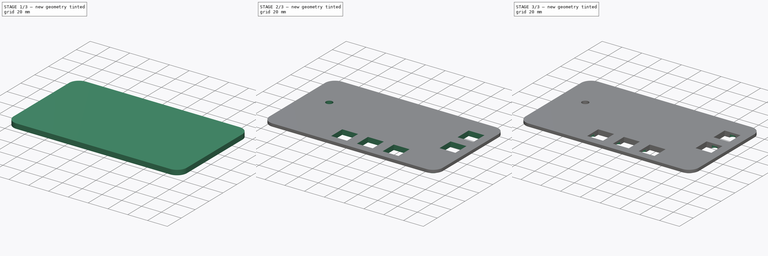
[diagram: build sequence overview — one tinted view per stage of 3, left to right]
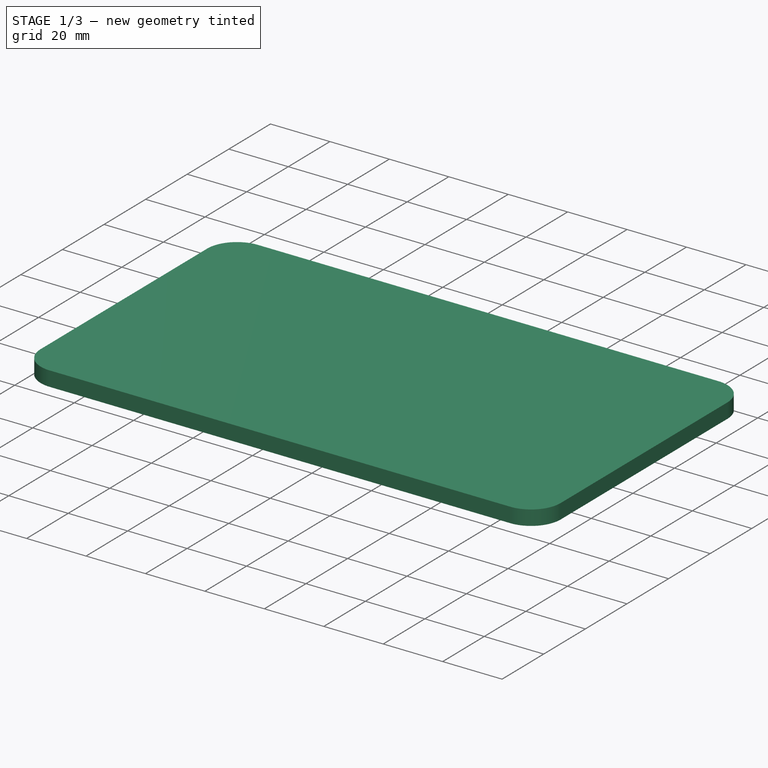
[diagram: stage 1 of 3 — iso view after this stage's code; geometry added in this stage tinted green]
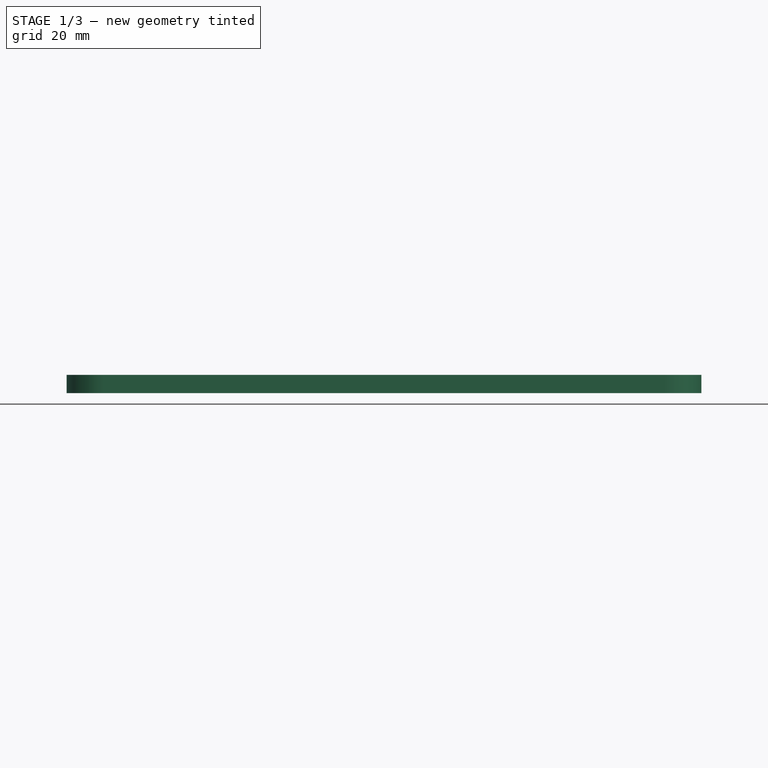
[diagram: stage 1 of 3 — front view after this stage's code; geometry added in this stage tinted green]
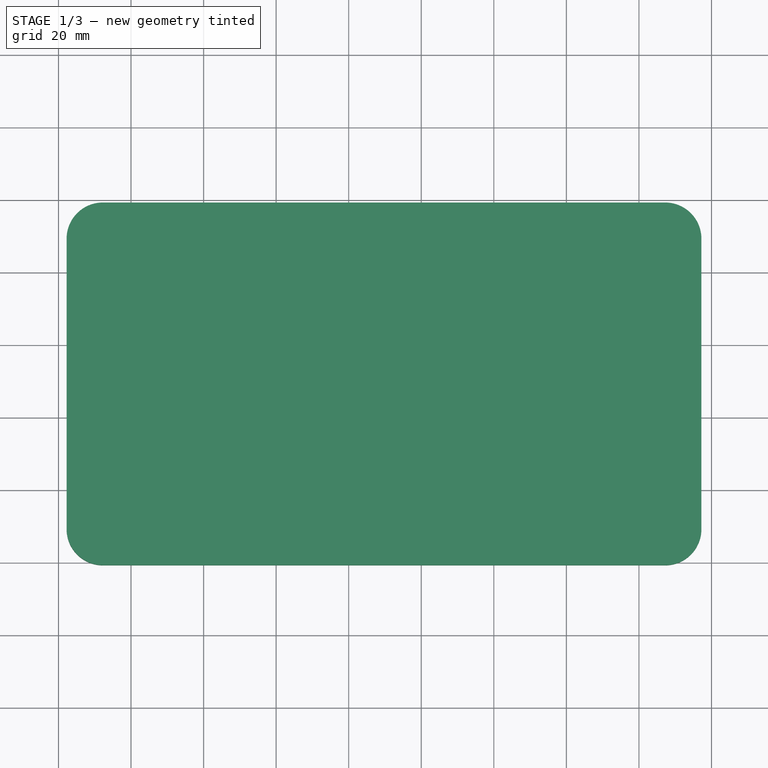
[diagram: stage 1 of 3 — top view after this stage's code; geometry added in this stage tinted green]
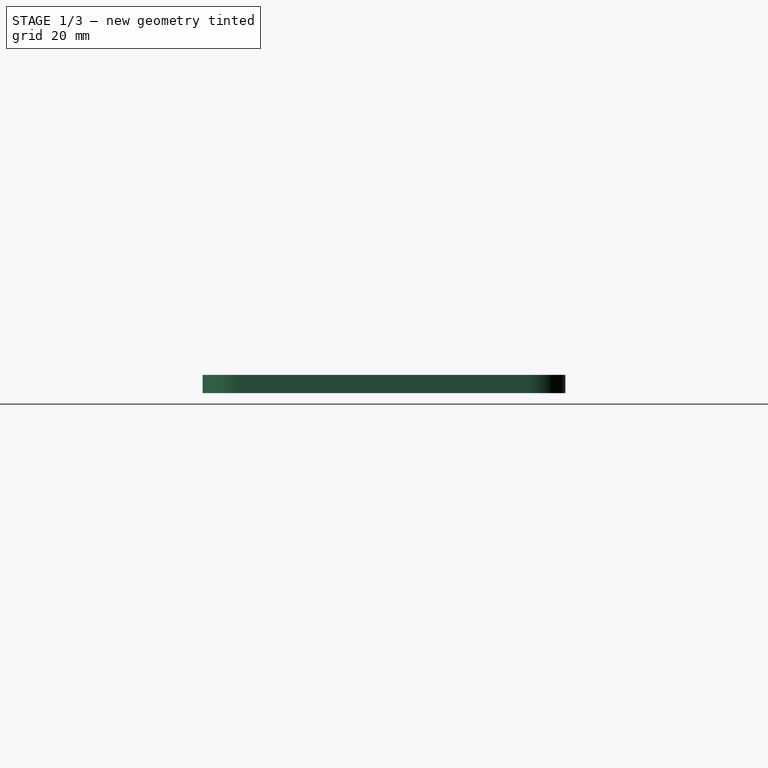
[diagram: stage 1 of 3 — right view after this stage's code; geometry added in this stage tinted green]
FCSTD DOCUMENT  (FreeCAD 0.15R4671 (Git))
Label: player_panel
License: All rights reserved
LicenseURL: http://en.wikipedia.org/wiki/All_rights_reserved
objects: Sketcher::SketchObject×5, PartDesign::Pocket×4, PartDesign::Pad×1, PartDesign::Fillet×1
note: 16 computed .brp shape members not serialized (recipe doc carries the construction recipe); baked Part::Feature solids carry a one-line shape summary decoded from their .brp

FEATURE [Sketcher::SketchObject] Sketch
  sketch-geometry (35):
    g0: LineSegment [constr] StartX=-43 StartY=27 StartZ=0 EndX=43 EndY=27 EndZ=0
    g1: LineSegment [constr] StartX=43 StartY=27 StartZ=0 EndX=43 EndY=-27 EndZ=0
    g2: LineSegment [constr] StartX=43 StartY=-27 StartZ=0 EndX=-43 EndY=-27 EndZ=0
    g3: LineSegment [constr] StartX=-43 StartY=-27 StartZ=0 EndX=-43 EndY=27 EndZ=0
    g4: LineSegment [constr] StartX=-32.5 StartY=-37 StartZ=0 EndX=-17.5 EndY=-37 EndZ=0
    g5: LineSegment [constr] StartX=-17.5 StartY=-37 StartZ=0 EndX=-17.5 EndY=-52 EndZ=0
    g6: LineSegment [constr] StartX=-17.5 StartY=-52 StartZ=0 EndX=-32.5 EndY=-52 EndZ=0
    g7: LineSegment [constr] StartX=-32.5 StartY=-52 StartZ=0 EndX=-32.5 EndY=-37 EndZ=0
    g8: LineSegment [constr] StartX=-7.5 StartY=-37 StartZ=0 EndX=7.5 EndY=-37 EndZ=0
    g9: LineSegment [constr] StartX=7.5 StartY=-37 StartZ=0 EndX=7.5 EndY=-52 EndZ=0
    g10: LineSegment [constr] StartX=7.5 StartY=-52 StartZ=0 EndX=-7.5 EndY=-52 EndZ=0
    g11: LineSegment [constr] StartX=-7.5 StartY=-52 StartZ=0 EndX=-7.5 EndY=-37 EndZ=0
    g12: LineSegment [constr] StartX=17.5 StartY=-37 StartZ=0 EndX=32.5 EndY=-37 EndZ=0
    g13: LineSegment [constr] StartX=32.5 StartY=-37 StartZ=0 EndX=32.5 EndY=-52 EndZ=0
    g14: LineSegment [constr] StartX=32.5 StartY=-52 StartZ=0 EndX=17.5 EndY=-52 EndZ=0
    g15: LineSegment [constr] StartX=17.5 StartY=-52 StartZ=0 EndX=17.5 EndY=-37 EndZ=0
    g16: LineSegment [constr] StartX=7.5 StartY=-37 StartZ=0 EndX=17.5 EndY=-37 EndZ=0
    g17: LineSegment [constr] StartX=-17.5 StartY=-37 StartZ=0 EndX=-7.5 EndY=-37 EndZ=0
    g18: LineSegment [constr] StartX=0 StartY=-27 StartZ=0 EndX=0 EndY=-37 EndZ=0
    g19: Circle [constr] CenterX=-73 CenterY=0 CenterZ=0 NormalX=0 NormalY=0 NormalZ=1 Radius=20
    g20: LineSegment [constr] StartX=-43 StartY=0 StartZ=0 EndX=-53 EndY=0 EndZ=0
    g21: LineSegment [constr] StartX=53 StartY=20 StartZ=0 EndX=68 EndY=20 EndZ=0
    g22: LineSegment [constr] StartX=68 StartY=20 StartZ=0 EndX=68 EndY=5 EndZ=0
    g23: LineSegment [constr] StartX=68 StartY=5 StartZ=0 EndX=53 EndY=5 EndZ=0
    g24: LineSegment [constr] StartX=53 StartY=5 StartZ=0 EndX=53 EndY=20 EndZ=0
    g25: LineSegment [constr] StartX=53 StartY=-5 StartZ=0 EndX=68 EndY=-5 EndZ=0
    g26: LineSegment [constr] StartX=68 StartY=-5 StartZ=0 EndX=68 EndY=-20 EndZ=0
    g27: LineSegment [constr] StartX=68 StartY=-20 StartZ=0 EndX=53 EndY=-20 EndZ=0
    g28: LineSegment [constr] StartX=53 StartY=-20 StartZ=0 EndX=53 EndY=-5 EndZ=0
    g29: LineSegment [constr] StartX=53 StartY=5 StartZ=0 EndX=53 EndY=-5 EndZ=0
    g30: LineSegment [constr] StartX=53 StartY=5 StartZ=0 EndX=43 EndY=5 EndZ=0
    g31: LineSegment StartX=-97.7701 StartY=39.304 StartZ=0 EndX=77.2299 EndY=39.304 EndZ=0
    g32: LineSegment StartX=77.2299 StartY=39.304 StartZ=0 EndX=77.2299 EndY=-60.696 EndZ=0
    g33: LineSegment StartX=77.2299 StartY=-60.696 StartZ=0 EndX=-97.7701 EndY=-60.696 EndZ=0
    g34: LineSegment StartX=-97.7701 StartY=-60.696 StartZ=0 EndX=-97.7701 EndY=39.304 EndZ=0
  constraints (102):
    c: Coincident(g0,g1)
    c: Coincident(g1,g2)
    c: Coincident(g2,g3)
    c: Coincident(g3,g0)
    c: Horizontal(g0)
    c: Horizontal(g2)
    c: Vertical(g1)
    c: Vertical(g3)
    c: Symmetric(g0,g1,g-1)
    c: Symmetric(g0,g0,g-2)
    c: Distance(g0) = 86
    c: Distance(g1) = 54
    c: Coincident(g4,g5)
    c: Coincident(g5,g6)
    c: Coincident(g6,g7)
    c: Coincident(g7,g4)
    c: Horizontal(g4)
    c: Horizontal(g6)
    c: Vertical(g5)
    c: Vertical(g7)
    c: Equal(g4,g5)
    c: Distance(g4) = 15
    c: Coincident(g8,g9)
    c: Coincident(g9,g10)
    c: Coincident(g10,g11)
    c: Coincident(g11,g8)
    c: Horizontal(g10)
    c: Vertical(g9)
    c: Vertical(g11)
    c: Equal(g8,g9)
    c: Equal(g8,g4)
    c: Coincident(g12,g13)
    c: Coincident(g13,g14)
    c: Coincident(g14,g15)
    c: Coincident(g15,g12)
    c: Horizontal(g12)
    c: Horizontal(g14)
    c: Vertical(g13)
    c: Vertical(g15)
    c: Equal(g12,g13)
    c: Equal(g12,g4)
    c: Symmetric(g8,g8,g-2)
    c: Symmetric(g12,g4,g-2)
    c: Coincident(g16,g8)
    c: Coincident(g16,g12)
    c: Coincident(g17,g4)
    c: Coincident(g17,g8)
    c: Horizontal(g17)
    c: Equal(g17,g16)
    c: Distance(g17) = 10
    c: PointOnObject(g18,g2)
    c: Vertical(g18)
    c: PointOnObject(g18,g8)
    c: PointOnObject(g18,g-2)
    c: Distance(g18) = 10
    c: PointOnObject(g19,g-1)
    c: Radius(g19) = 20
    c: Horizontal(g20)
    c: PointOnObject(g20,g19)
    c: PointOnObject(g20,g3)
    c: PointOnObject(g20,g-1)
    c: Distance(g20) = 10
    c: Coincident(g21,g22)
    c: Coincident(g22,g23)
    c: Coincident(g23,g24)
    c: Coincident(g24,g21)
    c: Horizontal(g21)
    c: Horizontal(g23)
    c: Vertical(g22)
    c: Vertical(g24)
    c: Coincident(g25,g26)
    c: Coincident(g26,g27)
    c: Coincident(g27,g28)
    c: Coincident(g28,g25)
    c: Horizontal(g25)
    c: Horizontal(g27)
    c: Vertical(g26)
    c: Vertical(g28)
    c: Equal(g21,g25)
    c: Equal(g25,g22)
    c: Equal(g22,g26)
    c: Equal(g26,g4)
    c: Symmetric(g22,g25,g-1)
    c: Coincident(g29,g23)
    c: Coincident(g29,g25)
    c: Distance(g29) = 10
    c: Coincident(g30,g23)
    c: PointOnObject(g30,g1)
    c: Horizontal(g30)
    c: Distance(g30) = 10
    c: Coincident(g31,g32)
    c: Coincident(g32,g33)
    c: Coincident(g33,g34)
    c: Coincident(g34,g31)
    c: Horizontal(g31)
    c: Horizontal(g33)
    c: Vertical(g32)
    c: Vertical(g34)
    c: Distance(g32) = 100
    c: Distance(g31) = 175
    c: DistanceX(g31) = 77.2299
    c: DistanceY(g31) = 39.304
FEATURE [PartDesign::Pad] Pad
  Length = 5
  Length2 = 100
  Sketch = -> Sketch
  Type = 0
FEATURE [PartDesign::Fillet] Fillet
  Base = -> Pad [Edge8,Edge1,Edge5,Edge2]
  Radius = 10
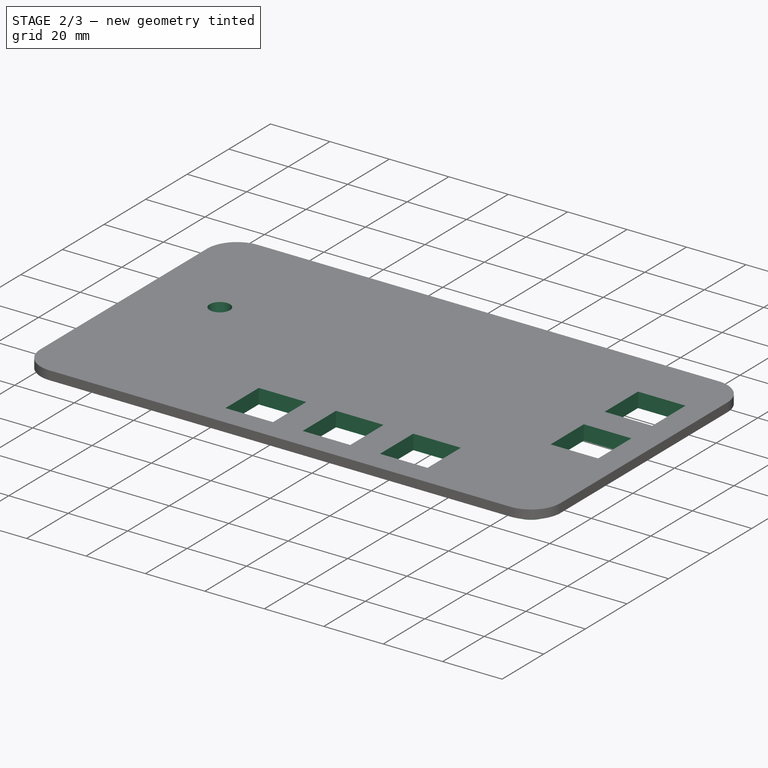
[diagram: stage 2 of 3 — iso view after this stage's code; geometry added in this stage tinted green]
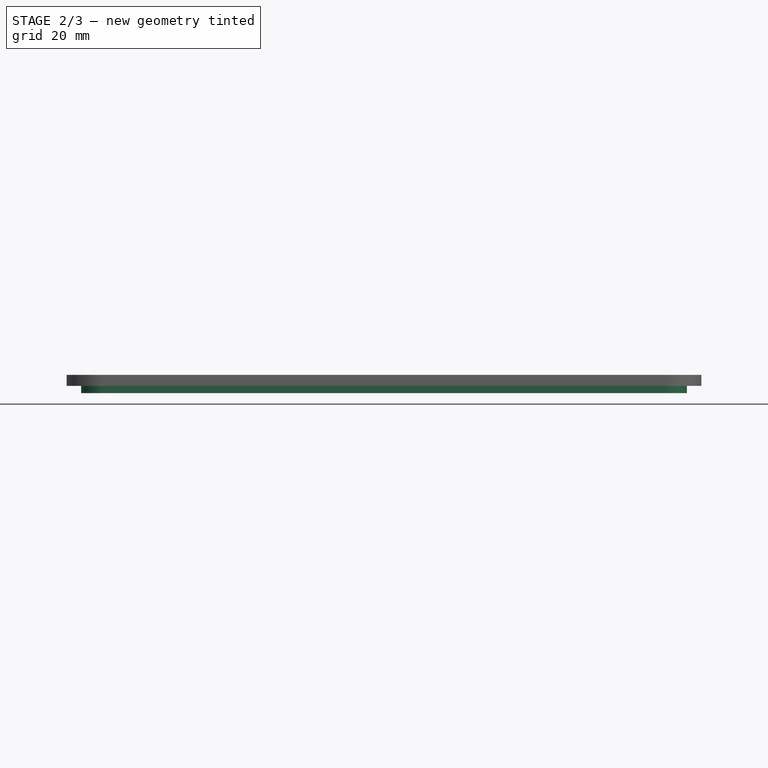
[diagram: stage 2 of 3 — front view after this stage's code; geometry added in this stage tinted green]
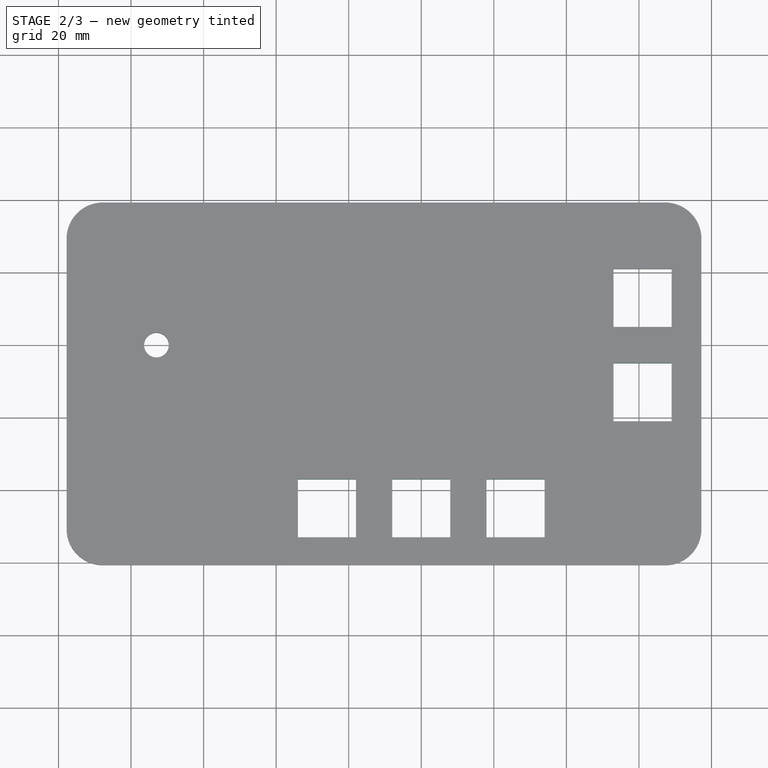
[diagram: stage 2 of 3 — top view after this stage's code; geometry added in this stage tinted green]
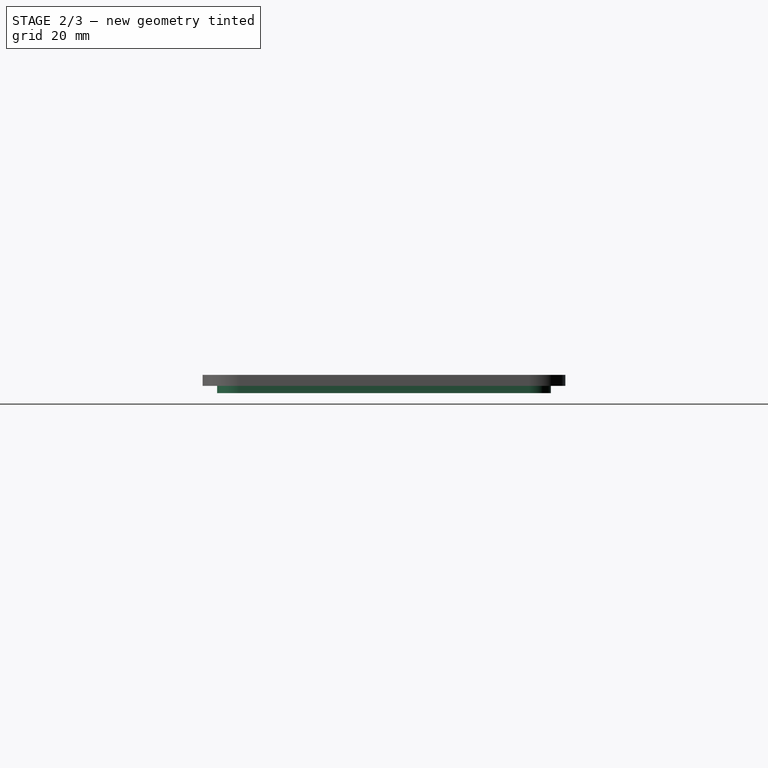
[diagram: stage 2 of 3 — right view after this stage's code; geometry added in this stage tinted green]
FEATURE [Sketcher::SketchObject] Sketch001
  Placement = pos=(0,0,5) rot=(0,0,1;0rad)
  Support = -> Fillet [Face5]
  sketch-geometry (32):
    g0: LineSegment [constr] StartX=-43 StartY=27 StartZ=0 EndX=43 EndY=27 EndZ=0
    g1: LineSegment [constr] StartX=43 StartY=27 StartZ=0 EndX=43 EndY=-27 EndZ=0
    g2: LineSegment [constr] StartX=43 StartY=-27 StartZ=0 EndX=-43 EndY=-27 EndZ=0
    g3: LineSegment [constr] StartX=-43 StartY=-27 StartZ=0 EndX=-43 EndY=27 EndZ=0
    g4: LineSegment StartX=-34 StartY=-37 StartZ=0 EndX=-18 EndY=-37 EndZ=0
    g5: LineSegment StartX=-18 StartY=-37 StartZ=0 EndX=-18 EndY=-53 EndZ=0
    g6: LineSegment StartX=-18 StartY=-53 StartZ=0 EndX=-34 EndY=-53 EndZ=0
    g7: LineSegment StartX=-34 StartY=-53 StartZ=0 EndX=-34 EndY=-37 EndZ=0
    g8: LineSegment StartX=-8 StartY=-37 StartZ=0 EndX=8 EndY=-37 EndZ=0
    g9: LineSegment StartX=8 StartY=-37 StartZ=0 EndX=8 EndY=-53 EndZ=0
    g10: LineSegment StartX=8 StartY=-53 StartZ=0 EndX=-8 EndY=-53 EndZ=0
    g11: LineSegment StartX=-8 StartY=-53 StartZ=0 EndX=-8 EndY=-37 EndZ=0
    g12: LineSegment StartX=18 StartY=-37 StartZ=0 EndX=34 EndY=-37 EndZ=0
    g13: LineSegment StartX=34 StartY=-37 StartZ=0 EndX=34 EndY=-53 EndZ=0
    g14: LineSegment StartX=34 StartY=-53 StartZ=0 EndX=18 EndY=-53 EndZ=0
    g15: LineSegment StartX=18 StartY=-53 StartZ=0 EndX=18 EndY=-37 EndZ=0
    g16: LineSegment [constr] StartX=8 StartY=-37 StartZ=0 EndX=18 EndY=-37 EndZ=0
    g17: LineSegment [constr] StartX=-18 StartY=-37 StartZ=0 EndX=-8 EndY=-37 EndZ=0
    g18: LineSegment [constr] StartX=0 StartY=-27 StartZ=0 EndX=0 EndY=-37 EndZ=0
    g19: Circle [constr] CenterX=-73 CenterY=0 CenterZ=0 NormalX=0 NormalY=0 NormalZ=1 Radius=20
    g20: LineSegment [constr] StartX=-43 StartY=0 StartZ=0 EndX=-53 EndY=0 EndZ=0
    g21: LineSegment StartX=53 StartY=21 StartZ=0 EndX=69 EndY=21 EndZ=0
    g22: LineSegment StartX=69 StartY=21 StartZ=0 EndX=69 EndY=5 EndZ=0
    g23: LineSegment StartX=69 StartY=5 StartZ=0 EndX=53 EndY=5 EndZ=0
    g24: LineSegment StartX=53 StartY=5 StartZ=0 EndX=53 EndY=21 EndZ=0
    g25: LineSegment StartX=53 StartY=-5 StartZ=0 EndX=69 EndY=-5 EndZ=0
    g26: LineSegment StartX=69 StartY=-5 StartZ=0 EndX=69 EndY=-21 EndZ=0
    g27: LineSegment StartX=69 StartY=-21 StartZ=0 EndX=53 EndY=-21 EndZ=0
    g28: LineSegment StartX=53 StartY=-21 StartZ=0 EndX=53 EndY=-5 EndZ=0
    g29: LineSegment [constr] StartX=53 StartY=5 StartZ=0 EndX=53 EndY=-5 EndZ=0
    g30: LineSegment [constr] StartX=53 StartY=5 StartZ=0 EndX=43 EndY=5 EndZ=0
    g31: Circle CenterX=-73 CenterY=0 CenterZ=0 NormalX=0 NormalY=0 NormalZ=1 Radius=3.4
  constraints (92):
    c: Coincident(g0,g1)
    c: Coincident(g1,g2)
    c: Coincident(g2,g3)
    c: Coincident(g3,g0)
    c: Horizontal(g0)
    c: Horizontal(g2)
    c: Vertical(g1)
    c: Vertical(g3)
    c: Symmetric(g0,g1,g-1)
    c: Symmetric(g0,g0,g-2)
    c: Distance(g0) = 86
    c: Distance(g1) = 54
    c: Coincident(g4,g5)
    c: Coincident(g5,g6)
    c: Coincident(g6,g7)
    c: Coincident(g7,g4)
    c: Horizontal(g4)
    c: Horizontal(g6)
    c: Vertical(g5)
    c: Vertical(g7)
    c: Equal(g4,g5)
    c: Distance(g4) = 16
    c: Coincident(g8,g9)
    c: Coincident(g9,g10)
    c: Coincident(g10,g11)
    c: Coincident(g11,g8)
    c: Horizontal(g10)
    c: Vertical(g9)
    c: Vertical(g11)
    c: Equal(g8,g9)
    c: Equal(g8,g4)
    c: Coincident(g12,g13)
    c: Coincident(g13,g14)
    c: Coincident(g14,g15)
    c: Coincident(g15,g12)
    c: Horizontal(g12)
    c: Horizontal(g14)
    c: Vertical(g13)
    c: Vertical(g15)
    c: Equal(g12,g13)
    c: Equal(g12,g4)
    c: Symmetric(g8,g8,g-2)
    c: Symmetric(g12,g4,g-2)
    c: Coincident(g16,g8)
    c: Coincident(g16,g12)
    c: Coincident(g17,g4)
    c: Coincident(g17,g8)
    c: Horizontal(g17)
    c: Equal(g17,g16)
    c: Distance(g17) = 10
    c: PointOnObject(g18,g2)
    c: Vertical(g18)
    c: PointOnObject(g18,g8)
    c: PointOnObject(g18,g-2)
    c: Distance(g18) = 10
    c: PointOnObject(g19,g-1)
    c: Radius(g19) = 20
    c: Horizontal(g20)
    c: PointOnObject(g20,g19)
    c: PointOnObject(g20,g3)
    c: PointOnObject(g20,g-1)
    c: Distance(g20) = 10
    c: Coincident(g21,g22)
    c: Coincident(g22,g23)
    c: Coincident(g23,g24)
    c: Coincident(g24,g21)
    c: Horizontal(g21)
    c: Horizontal(g23)
    c: Vertical(g22)
    c: Vertical(g24)
    c: Coincident(g25,g26)
    c: Coincident(g26,g27)
    c: Coincident(g27,g28)
    c: Coincident(g28,g25)
    c: Horizontal(g25)
    c: Horizontal(g27)
    c: Vertical(g26)
    c: Vertical(g28)
    c: Equal(g21,g25)
    c: Equal(g25,g22)
    c: Equal(g22,g26)
    c: Equal(g26,g4)
    c: Symmetric(g22,g25,g-1)
    c: Coincident(g29,g23)
    c: Coincident(g29,g25)
    c: Distance(g29) = 10
    c: Coincident(g30,g23)
    c: PointOnObject(g30,g1)
    c: Horizontal(g30)
    c: Distance(g30) = 10
    c: Coincident(g31,g19)
    c: Radius(g31) = 3.4
FEATURE [PartDesign::Pocket] Pocket
  Length = 5
  Sketch = -> Sketch001
  Type = 1
FEATURE [Sketcher::SketchObject] Sketch002
  ExternalGeometry = -> [Pocket]
  Placement = pos=(0,0,0) rot=(1,0,0;3.14159rad)
  Support = -> Pocket [Face2]
  sketch-geometry (13):
    g0: LineSegment StartX=-87.7701 StartY=56.696 StartZ=0 EndX=67.2299 EndY=56.696 EndZ=0
    g1: ArcOfCircle CenterX=-87.7701 CenterY=50.696 CenterZ=0 NormalX=0 NormalY=0 NormalZ=1 Radius=6 StartAngle=1.5708 EndAngle=3.14159
    g2: ArcOfCircle CenterX=67.2299 CenterY=50.696 CenterZ=0 NormalX=0 NormalY=0 NormalZ=1 Radius=6 StartAngle=4.66251e-06 EndAngle=1.5708
    g3: LineSegment StartX=73.2299 StartY=50.696 StartZ=0 EndX=73.2299 EndY=-29.304 EndZ=0
    g4: LineSegment StartX=-87.7701 StartY=-35.304 StartZ=0 EndX=67.2299 EndY=-35.304 EndZ=0
    g5: ArcOfCircle CenterX=67.2299 CenterY=-29.304 CenterZ=0 NormalX=0 NormalY=0 NormalZ=1 Radius=6 StartAngle=4.71239 EndAngle=6.28319
    g6: LineSegment StartX=-93.7701 StartY=50.696 StartZ=0 EndX=-93.7701 EndY=-29.304 EndZ=0
    g7: ArcOfCircle CenterX=-87.7701 CenterY=-29.304 CenterZ=0 NormalX=0 NormalY=0 NormalZ=1 Radius=6 StartAngle=3.14159 EndAngle=4.71239
    g8: LineSegment [constr] StartX=0 StartY=60.696 StartZ=0 EndX=0 EndY=56.696 EndZ=0
    g9: LineSegment StartX=-106.658 StartY=70.2085 StartZ=0 EndX=83.0393 EndY=70.2085 EndZ=0
    g10: LineSegment StartX=83.0393 StartY=70.2085 StartZ=0 EndX=83.0393 EndY=-47.6221 EndZ=0
    g11: LineSegment StartX=83.0393 StartY=-47.6221 StartZ=0 EndX=-106.658 EndY=-47.6221 EndZ=0
    g12: LineSegment StartX=-106.658 StartY=-47.6221 StartZ=0 EndX=-106.658 EndY=70.2085 EndZ=0
  constraints (40):
    c: Horizontal(g0)
    c: Coincident(g1,g-4)
    c: Coincident(g1,g0)
    c: Coincident(g2,g-6)
    c: Coincident(g2,g0)
    c: Coincident(g3,g2)
    c: Vertical(g3)
    c: Horizontal(g4)
    c: Coincident(g5,g-8)
    c: Coincident(g5,g3)
    c: Coincident(g5,g4)
    c: Coincident(g6,g1)
    c: Vertical(g6)
    c: Coincident(g7,g-10)
    c: Coincident(g7,g4)
    c: Coincident(g7,g6)
    c: Tangent(g1,g0)
    c: Tangent(g1,g6)
    c: Tangent(g2,g0)
    c: Tangent(g2,g3)
    c: Tangent(g5,g3)
    c: Tangent(g5,g4)
    c: Tangent(g7,g4)
    c: PointOnObject(g8,g-3)
    c: PointOnObject(g8,g0)
    c: Vertical(g8)
    c: PointOnObject(g8,g-2)
    c: Coincident(g9,g10)
    c: Coincident(g10,g11)
    c: Coincident(g11,g12)
    c: Coincident(g12,g9)
    c: Horizontal(g9)
    c: Horizontal(g11)
    c: Vertical(g10)
    c: Vertical(g12)
    c: Distance(g8) = 4
    c: DistanceX(g9) = 83.0393
    c: DistanceY(g9) = 70.2085
    c: DistanceX(g11) = -106.658
    c: DistanceY(g11) = -47.6221
FEATURE [PartDesign::Pocket] Pocket001
  Length = 2
  Sketch = -> Sketch002
  Type = 0
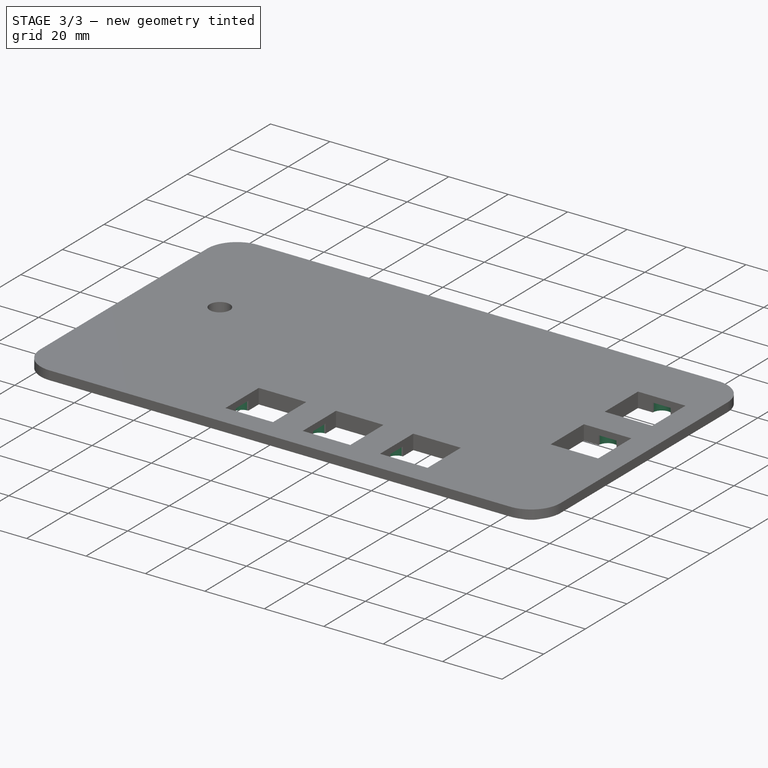
[diagram: stage 3 of 3 — iso view after this stage's code; geometry added in this stage tinted green]
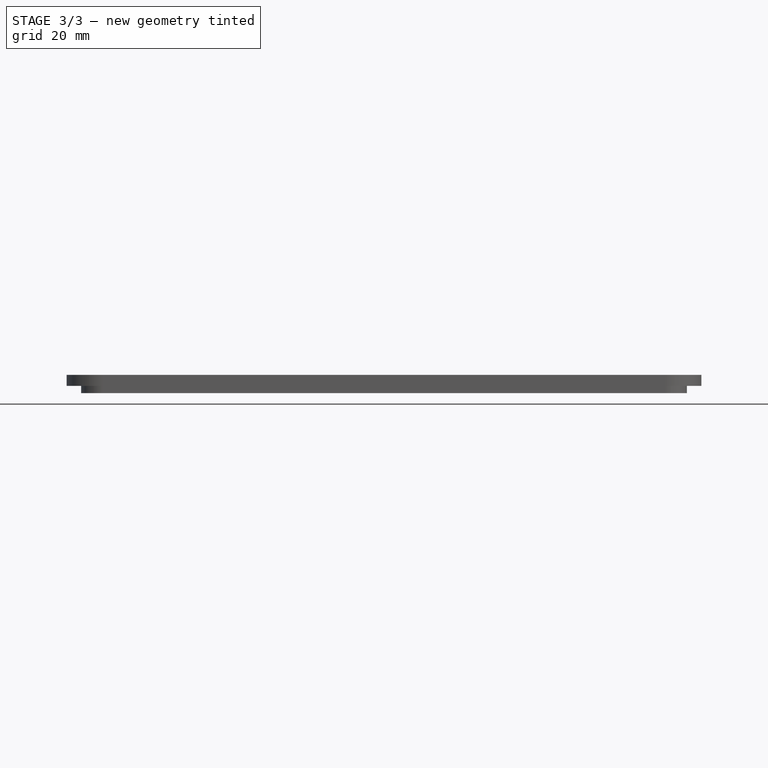
[diagram: stage 3 of 3 — front view after this stage's code; geometry added in this stage tinted green]
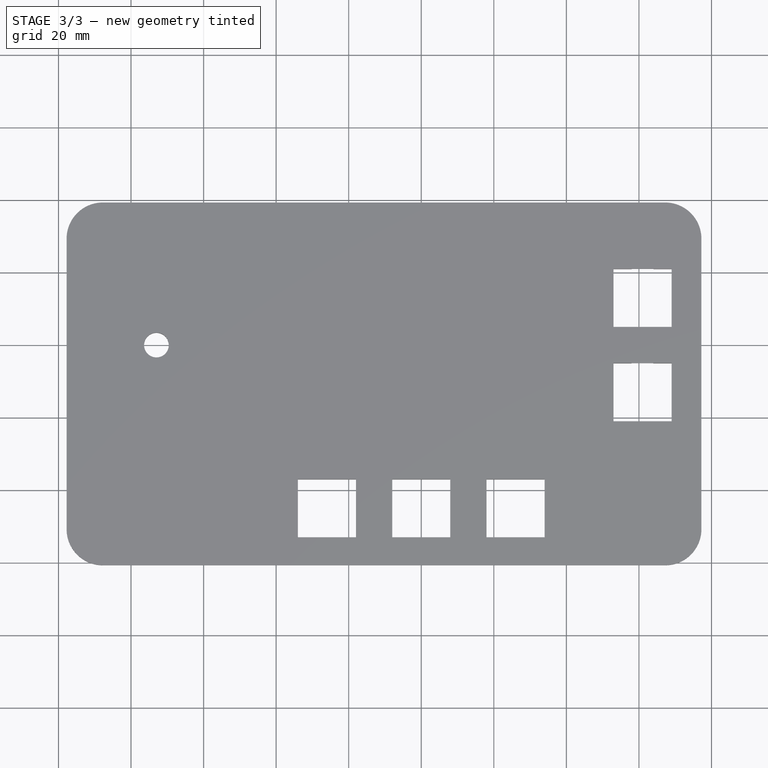
[diagram: stage 3 of 3 — top view after this stage's code; geometry added in this stage tinted green]
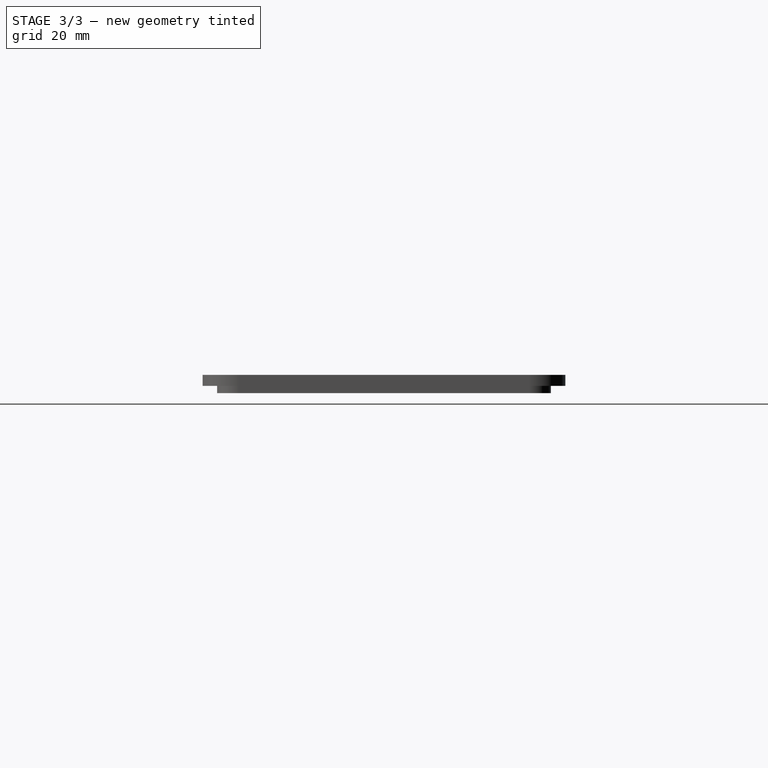
[diagram: stage 3 of 3 — right view after this stage's code; geometry added in this stage tinted green]
FEATURE [Sketcher::SketchObject] Sketch003
  Placement = pos=(0,0,0) rot=(1,0,0;3.14159rad)
  Support = -> Pocket001 [Face40]
  sketch-geometry (8):
    g0: LineSegment [constr] StartX=-43 StartY=27 StartZ=0 EndX=43 EndY=27 EndZ=0
    g1: LineSegment [constr] StartX=43 StartY=27 StartZ=0 EndX=43 EndY=-27 EndZ=0
    g2: LineSegment [constr] StartX=43 StartY=-27 StartZ=0 EndX=-43 EndY=-27 EndZ=0
    g3: LineSegment [constr] StartX=-43 StartY=-27 StartZ=0 EndX=-43 EndY=27 EndZ=0
    g4: LineSegment StartX=-21.72 StartY=20.575 StartZ=0 EndX=21.72 EndY=20.575 EndZ=0
    g5: LineSegment StartX=21.72 StartY=20.575 StartZ=0 EndX=21.72 EndY=-20.575 EndZ=0
    g6: LineSegment StartX=21.72 StartY=-20.575 StartZ=0 EndX=-21.72 EndY=-20.575 EndZ=0
    g7: LineSegment StartX=-21.72 StartY=-20.575 StartZ=0 EndX=-21.72 EndY=20.575 EndZ=0
  constraints (24):
    c: Coincident(g0,g1)
    c: Coincident(g1,g2)
    c: Coincident(g2,g3)
    c: Coincident(g3,g0)
    c: Horizontal(g0)
    c: Horizontal(g2)
    c: Vertical(g1)
    c: Vertical(g3)
    c: Symmetric(g0,g1,g-1)
    c: Symmetric(g0,g0,g-2)
    c: Distance(g0) = 86
    c: Distance(g1) = 54
    c: Coincident(g4,g5)
    c: Coincident(g5,g6)
    c: Coincident(g6,g7)
    c: Coincident(g7,g4)
    c: Horizontal(g4)
    c: Horizontal(g6)
    c: Vertical(g5)
    c: Vertical(g7)
    c: Symmetric(g4,g4,g-2)
    c: Symmetric(g4,g5,g-1)
    c: Distance(g4) = 43.44
    c: Distance(g5) = 41.15
FEATURE [PartDesign::Pocket] Pocket002
  Length = 4.5
  Sketch = -> Sketch003
  Type = 0
FEATURE [Sketcher::SketchObject] Sketch004
  ExternalGeometry = -> [Pocket002]
  Placement = pos=(0,0,0) rot=(1,0,0;3.14159rad)
  Support = -> Pocket002 [Face40]
  sketch-geometry (10):
    g0: Circle CenterX=-34 CenterY=45 CenterZ=0 NormalX=0 NormalY=0 NormalZ=1 Radius=3
    g1: Circle CenterX=-18 CenterY=45 CenterZ=0 NormalX=0 NormalY=0 NormalZ=1 Radius=3
    g2: Circle CenterX=-8 CenterY=45 CenterZ=0 NormalX=0 NormalY=0 NormalZ=1 Radius=3
    g3: Circle CenterX=8 CenterY=45 CenterZ=0 NormalX=0 NormalY=0 NormalZ=1 Radius=3
    g4: Circle CenterX=18 CenterY=45 CenterZ=0 NormalX=0 NormalY=0 NormalZ=1 Radius=3
    g5: Circle CenterX=34 CenterY=45 CenterZ=0 NormalX=0 NormalY=0 NormalZ=1 Radius=3
    g6: Circle CenterX=61 CenterY=21 CenterZ=0 NormalX=0 NormalY=0 NormalZ=1 Radius=3
    g7: Circle CenterX=61 CenterY=5 CenterZ=0 NormalX=0 NormalY=0 NormalZ=1 Radius=3
    g8: Circle CenterX=61 CenterY=-5 CenterZ=0 NormalX=0 NormalY=0 NormalZ=1 Radius=3
    g9: Circle CenterX=61 CenterY=-21 CenterZ=0 NormalX=0 NormalY=0 NormalZ=1 Radius=3
  constraints (30):
    c: PointOnObject(g0,g-3)
    c: Symmetric(g-3,g-3,g0)
    c: Radius(g0) = 3
    c: PointOnObject(g1,g-4)
    c: PointOnObject(g2,g-5)
    c: PointOnObject(g3,g-6)
    c: PointOnObject(g4,g-7)
    c: PointOnObject(g5,g-8)
    c: PointOnObject(g6,g-9)
    c: PointOnObject(g7,g-10)
    c: PointOnObject(g8,g-11)
    c: PointOnObject(g9,g-12)
    c: Equal(g1,g0)
    c: Equal(g2,g3)
    c: Equal(g3,g4)
    c: Equal(g4,g5)
    c: Equal(g5,g0)
    c: Equal(g9,g8)
    c: Equal(g8,g7)
    c: Equal(g7,g6)
    c: Equal(g6,g0)
    c: Symmetric(g-4,g-4,g1)
    c: Symmetric(g-5,g-5,g2)
    c: Symmetric(g-6,g-6,g3)
    c: Symmetric(g-7,g-7,g4)
    c: Symmetric(g-8,g-8,g5)
    c: Symmetric(g-9,g-9,g6)
    c: Symmetric(g-10,g-10,g7)
    c: Symmetric(g-11,g-11,g8)
    c: Symmetric(g-12,g-12,g9)
FEATURE [PartDesign::Pocket] Pocket003
  Length = 3
  Sketch = -> Sketch004
  Type = 0
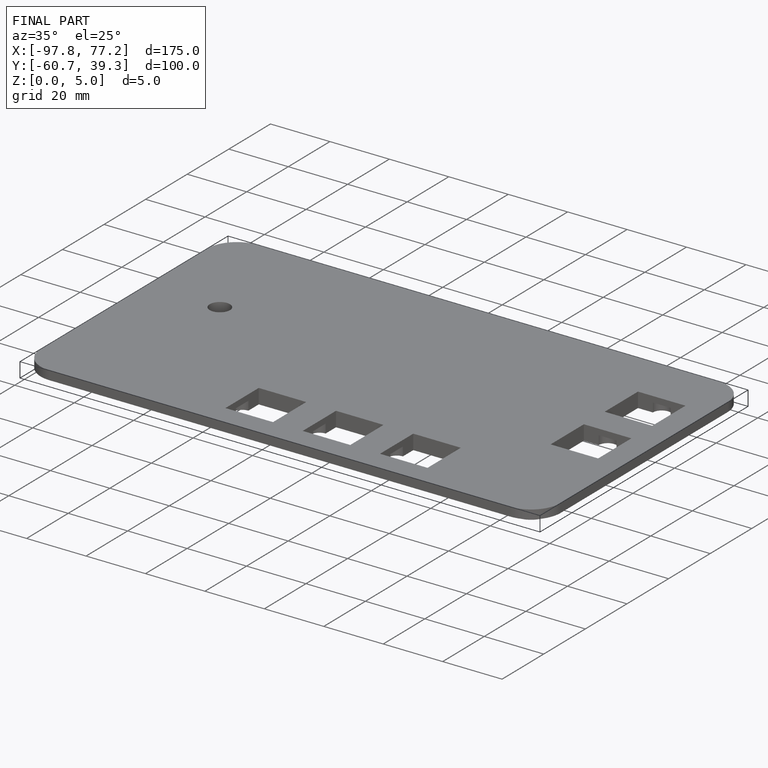
[diagram: finished part — iso view with bounding-box wireframe]
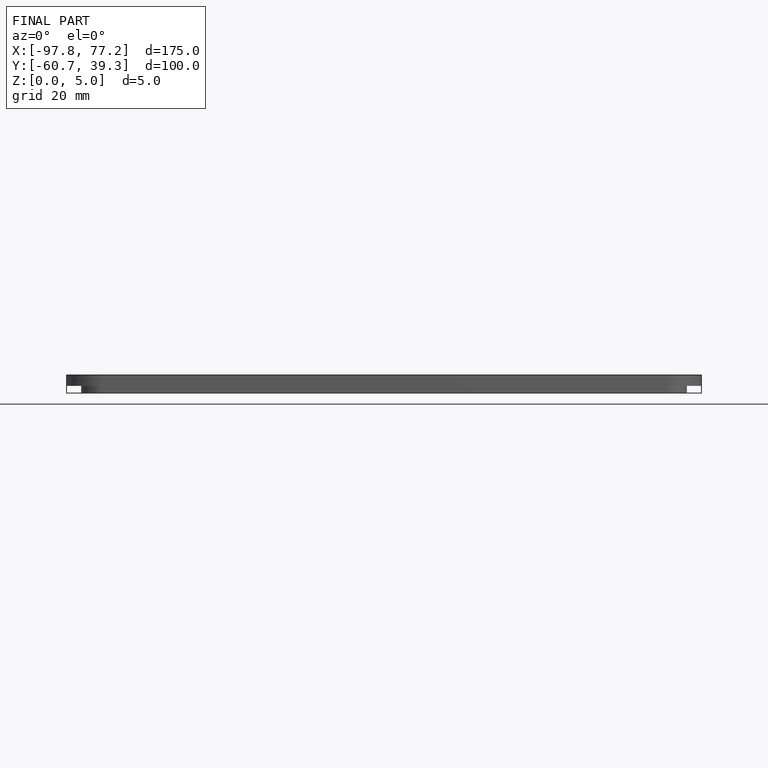
[diagram: finished part — front view with bounding-box wireframe]
